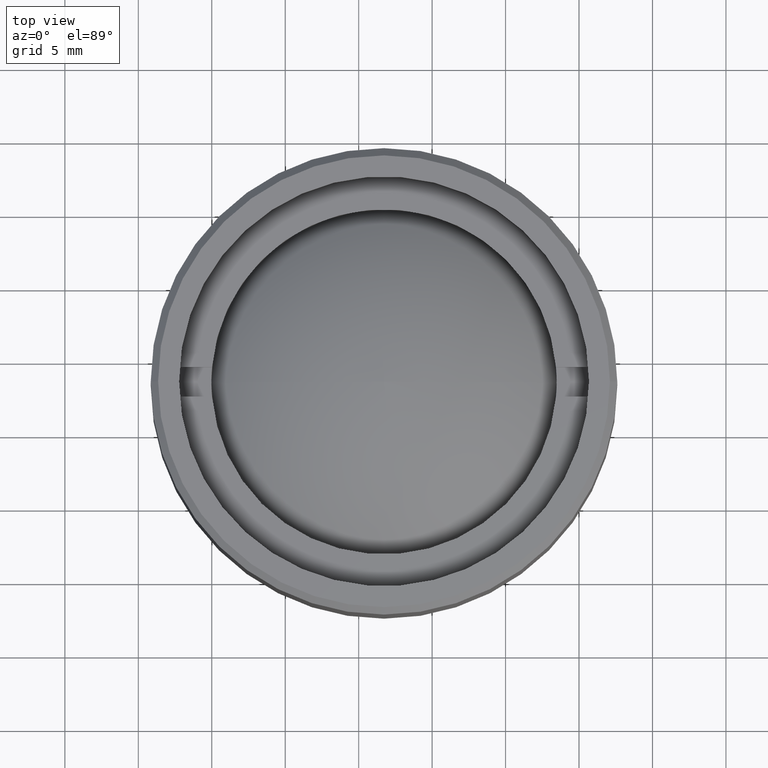
[diagram: clean part render]
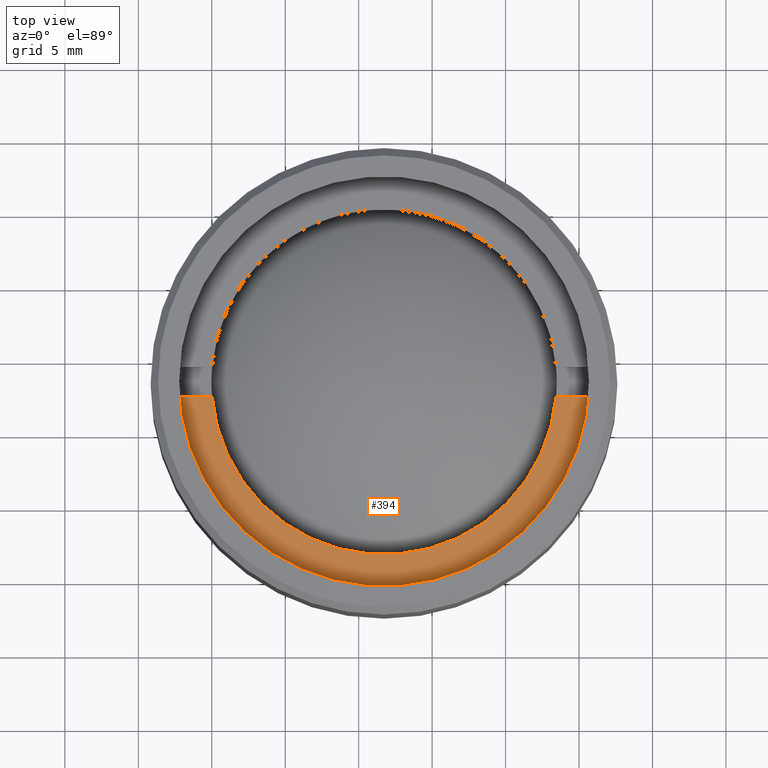
[diagram: same view with one face highlighted and labeled with its STEP entity id]
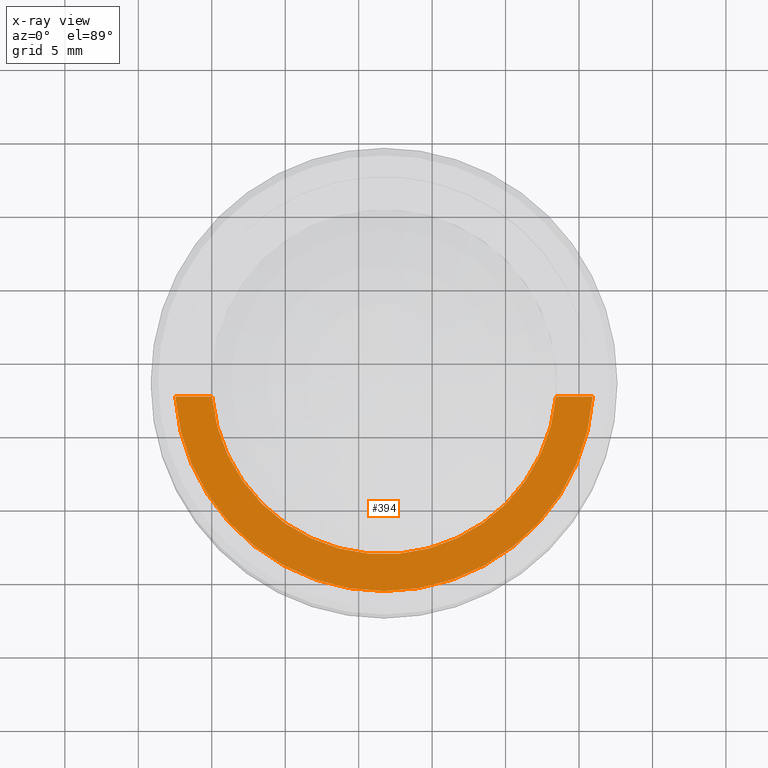
[diagram: x-ray of the same camera — body ghosted, the highlighted face saturated]
A machine part, top view. The second image highlights one B-rep face of the part: STEP entity #394.
The next image is the same camera in x-ray: the body ghosted, the highlighted face saturated — about 0% of this face is hidden behind the body in this view.
In plain terms, the highlighted planar face has unit normal (0, 0, 1).
Its self-contained STEP definition (entity closure, byte-faithful):
#8 = PLANE ( 'NONE',  #1464 ) ;
#14 = DIRECTION ( 'NONE',  ( 1.000000000000000000, 0.000000000000000000, -0.000000000000000000 ) ) ;
#64 = CARTESIAN_POINT ( 'NONE',  ( -30.62185530834360492, -1.000000000000000000, 2.500000000000000000 ) ) ;
#84 = VECTOR ( 'NONE', #1069, 1000.000000000000000 ) ;
#95 = AXIS2_PLACEMENT_3D ( 'NONE', #224, #1117, #867 ) ;
#123 = ORIENTED_EDGE ( 'NONE', *, *, #926, .F. ) ;
#171 = CARTESIAN_POINT ( 'NONE',  ( -30.62185530834360492, -1.000000000000000000, 2.500000000000000000 ) ) ;
#224 = CARTESIAN_POINT ( 'NONE',  ( 0.000000000000000000, 0.000000000000000000, 2.500000000000000000 ) ) ;
#231 = VECTOR ( 'NONE', #730, 1000.000000000000000 ) ;
#340 = AXIS2_PLACEMENT_3D ( 'NONE', #1230, #1608, #1601 ) ;
#356 = CARTESIAN_POINT ( 'NONE',  ( 14.21486897582949993, -1.000000000000000000, 2.500000000000000000 ) ) ;
#394 = ADVANCED_FACE ( 'NONE', ( #1316 ), #8, .T. ) ;
#542 = ORIENTED_EDGE ( 'NONE', *, *, #1003, .F. ) ;
#603 = EDGE_CURVE ( 'NONE', #1261, #1361, #620, .T. ) ;
#620 = CIRCLE ( 'NONE', #95, 14.25000000000000000 ) ;
#730 = DIRECTION ( 'NONE',  ( 1.000000000000000000, 0.000000000000000000, 0.000000000000000000 ) ) ;
#791 = CARTESIAN_POINT ( 'NONE',  ( 11.70736947396809668, -1.000000000000000000, 2.500000000000000000 ) ) ;
#855 = VERTEX_POINT ( 'NONE', #791 ) ;
#867 = DIRECTION ( 'NONE',  ( 1.000000000000000000, 0.000000000000000000, 0.000000000000000000 ) ) ;
#926 = EDGE_CURVE ( 'NONE', #855, #1361, #952, .T. ) ;
#952 = LINE ( 'NONE', #171, #84 ) ;
#1003 = EDGE_CURVE ( 'NONE', #1394, #855, #1184, .T. ) ;
#1028 = CARTESIAN_POINT ( 'NONE',  ( -14.21486897582949993, -1.000000000000000000, 2.500000000000000000 ) ) ;
#1033 = ORIENTED_EDGE ( 'NONE', *, *, #1046, .F. ) ;
#1046 = EDGE_CURVE ( 'NONE', #1261, #1394, #1120, .T. ) ;
#1067 = CARTESIAN_POINT ( 'NONE',  ( 0.000000000000000000, 0.000000000000000000, 2.500000000000000000 ) ) ;
#1069 = DIRECTION ( 'NONE',  ( 1.000000000000000000, 0.000000000000000000, 0.000000000000000000 ) ) ;
#1073 = ORIENTED_EDGE ( 'NONE', *, *, #603, .T. ) ;
#1117 = DIRECTION ( 'NONE',  ( 0.000000000000000000, 0.000000000000000000, 1.000000000000000000 ) ) ;
#1120 = LINE ( 'NONE', #64, #231 ) ;
#1180 = EDGE_LOOP ( 'NONE', ( #1033, #1073, #123, #542 ) ) ;
#1184 = CIRCLE ( 'NONE', #340, 11.75000000000000178 ) ;
#1230 = CARTESIAN_POINT ( 'NONE',  ( 0.000000000000000000, 0.000000000000000000, 2.500000000000000000 ) ) ;
#1261 = VERTEX_POINT ( 'NONE', #1028 ) ;
#1316 = FACE_OUTER_BOUND ( 'NONE', #1180, .T. ) ;
#1361 = VERTEX_POINT ( 'NONE', #356 ) ;
#1376 = CARTESIAN_POINT ( 'NONE',  ( -11.70736947396809668, -1.000000000000000000, 2.500000000000000000 ) ) ;
#1394 = VERTEX_POINT ( 'NONE', #1376 ) ;
#1464 = AXIS2_PLACEMENT_3D ( 'NONE', #1067, #1568, #14 ) ;
#1568 = DIRECTION ( 'NONE',  ( 0.000000000000000000, 0.000000000000000000, 1.000000000000000000 ) ) ;
#1601 = DIRECTION ( 'NONE',  ( 1.000000000000000000, 0.000000000000000000, 0.000000000000000000 ) ) ;
#1608 = DIRECTION ( 'NONE',  ( 0.000000000000000000, 0.000000000000000000, 1.000000000000000000 ) ) ;